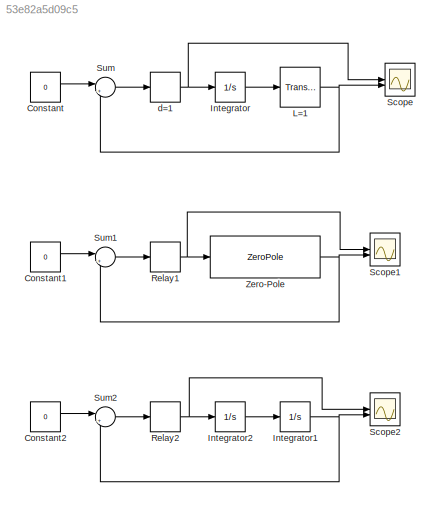
MODEL slx_53e82a5d09c5
KIND model
CONFIG AbsTol = auto
CONFIG EnableMultiTasking = off
CONFIG FixedStep = 0.01
CONFIG MaxStep = auto
CONFIG MinStep = auto
CONFIG RelTol = 1e-3
CONFIG SampleTimeConstraint = Unconstrained
CONFIG SolverName = FixedStepAuto
CONFIG StartTime = 0.0
CONFIG StopTime = 15.0
BLOCK [Constant] Constant
  Value = 0
BLOCK [Constant] Constant1
  Value = 0
BLOCK [Constant] Constant2
  Value = 0
BLOCK [Integrator] Integrator
BLOCK [Integrator] Integrator1
BLOCK [Integrator] Integrator2
BLOCK [TransportDelay] L=1
BLOCK [Relay] Relay1
  OffOutputValue = -1
BLOCK [Relay] Relay2
  OffOutputValue = -1
BLOCK [Scope] Scope
  Floating = off
  NumInputPorts = 2
  ScopeSpecificationString = Simulink.scopes.TimeScopeBlockCfg('CurrentConfiguration', extmgr.ConfigurationSet(extmgr.Configuration('Core','General UI',true,'FigureColor',[1 1 1]),extmgr.Configuration('Core','Source UI',true),extmgr.Configuration('Sources','WiredSimulink',true),extmgr.Configuration('Visuals','Time Domain',true,'SerializedDisplays',{struct('MinYLimReal','-1.26125','MaxYLimReal','1.25125','YLabelReal','','MinYL...<+1573ch>
BLOCK [Scope] Scope1
  Floating = off
  NumInputPorts = 2
  ScopeSpecificationString = Simulink.scopes.TimeScopeBlockCfg('CurrentConfiguration', extmgr.ConfigurationSet(extmgr.Configuration('Core','General UI',true,'FigureColor',[1 1 1]),extmgr.Configuration('Core','Source UI',true),extmgr.Configuration('Sources','WiredSimulink',true,'DataLoggingVariableName','ScopeData1'),extmgr.Configuration('Visuals','Time Domain',true,'SerializedDisplays',{struct('MinYLimReal','-0.2077','MaxYLim...<+1727ch>
BLOCK [Scope] Scope2
  Floating = off
  NumInputPorts = 2
  ScopeSpecificationString = Simulink.scopes.TimeScopeBlockCfg('CurrentConfiguration', extmgr.ConfigurationSet(extmgr.Configuration('Core','General UI',true,'FigureColor',[1 1 1]),extmgr.Configuration('Core','Source UI',true),extmgr.Configuration('Sources','WiredSimulink',true,'DataLoggingVariableName','ScopeData2'),extmgr.Configuration('Visuals','Time Domain',true,'SerializedDisplays',{struct('MinYLimReal','-1.25','MaxYLimRe...<+2294ch>
BLOCK [Sum] Sum
  Inputs = |+-
BLOCK [Sum] Sum1
  Inputs = |+-
BLOCK [Sum] Sum2
  Inputs = |+-
BLOCK [ZeroPole] Zero-Pole
  Poles = [-1 -1 -1]
  Zeros = []
BLOCK [Relay] d=1
  OffOutputValue = -1
LINE Constant1:1 -> Sum1:1
LINE Constant2:1 -> Sum2:1
LINE Constant:1 -> Sum:1
NET Integrator1:1 -> Scope2:2, Sum2:2
LINE Integrator2:1 -> Integrator1:1
LINE Integrator:1 -> L=1:1
NET L=1:1 -> Scope:2, Sum:2
NET Relay1:1 -> Scope1:1, Zero-Pole:1
NET Relay2:1 -> Integrator2:1, Scope2:1
LINE Sum1:1 -> Relay1:1
LINE Sum2:1 -> Relay2:1
LINE Sum:1 -> d=1:1
NET Zero-Pole:1 -> Scope1:2, Sum1:2
NET d=1:1 -> Integrator:1, Scope:1
note: NET lines group one-source signal fan-out (src -> all destinations, sorted); 1:1 wires keep LINE
